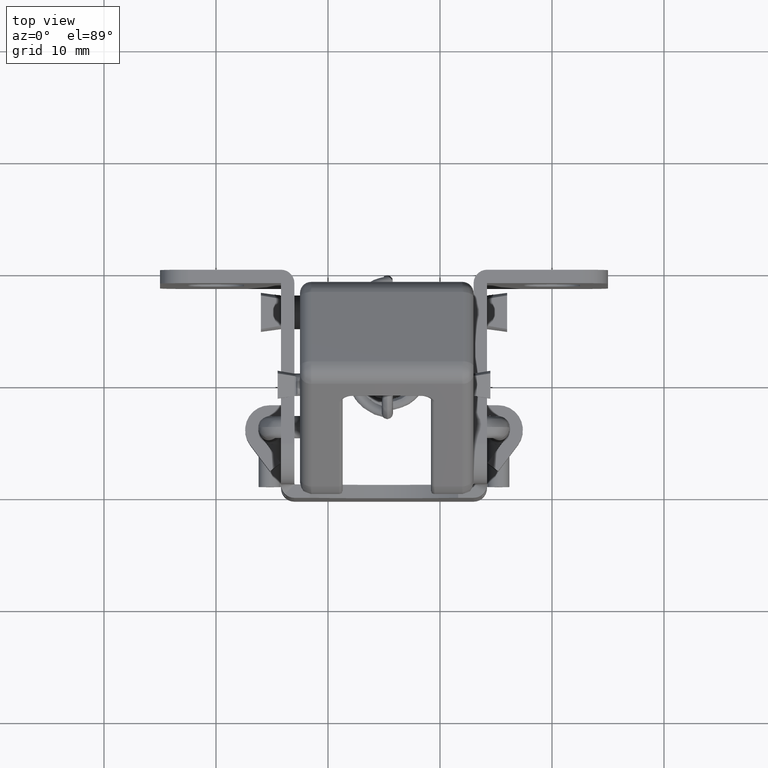
[diagram: clean part render]
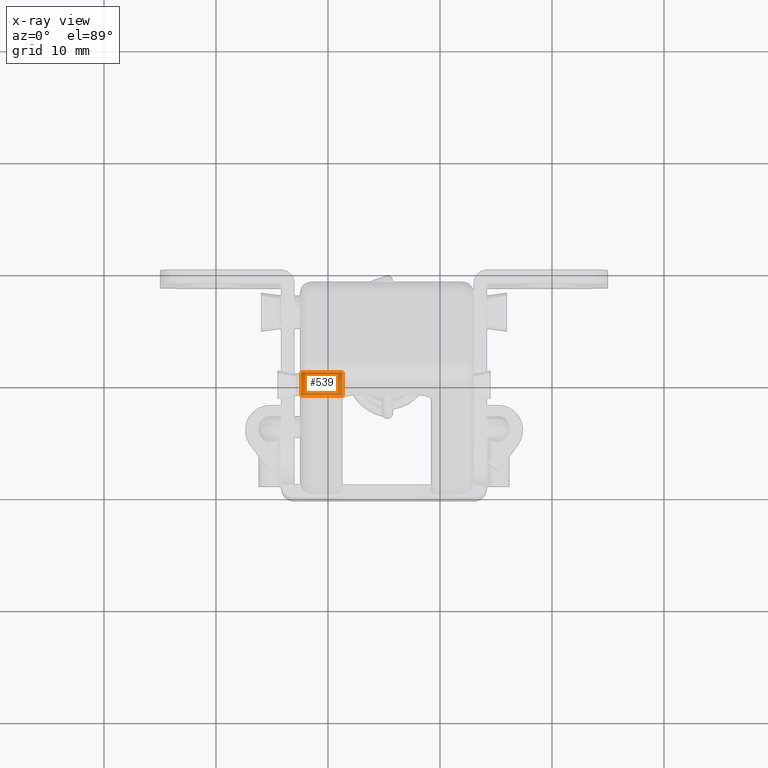
[diagram: x-ray — body ghosted, one internal face saturated and labeled with its STEP entity id]
A machine part, top view, then the same camera in x-ray: the body is ghosted and one INTERNAL B-rep face — a face not visible from any outside direction — is saturated and labeled: STEP entity #539.
In plain terms, the highlighted cylindrical surface (edge-blend (fillet) strip) has radius 1.1 mm, axis along (-1, 0, 0).
Its self-contained STEP definition (entity closure, byte-faithful):
#539=ADVANCED_FACE('',(#3056),#3055,.F.);
#3055=CYLINDRICAL_SURFACE('',#6252,1.10000000000E+00);
#3056=FACE_OUTER_BOUND('',#6253,.T.);
#6249=CARTESIAN_POINT('',(1.20000000000E+01,9.92250000000E+02,5.50000000000E+00));
#6250=DIRECTION('',(-0.00000000000E+00,1.00000000000E+00,0.00000000000E+00));
#6251=DIRECTION('',(0.00000000000E+00,0.00000000000E+00,1.00000000000E+00));
#6252=AXIS2_PLACEMENT_3D('',#6249,#6250,#6251);
#6253=EDGE_LOOP('',(#12127,#12128,#12129,#12130));
#12127=ORIENTED_EDGE('',*,*,#13072,.T.);
#12128=ORIENTED_EDGE('',*,*,#13086,.F.);
#12129=ORIENTED_EDGE('',*,*,#13048,.F.);
#12130=ORIENTED_EDGE('',*,*,#13087,.T.);
#13048=EDGE_CURVE('',#17135,#17136,#17137,.T.);
#13072=EDGE_CURVE('',#17285,#17286,#17287,.T.);
#13086=EDGE_CURVE('',#17136,#17286,#17375,.T.);
#13087=EDGE_CURVE('',#17135,#17285,#17381,.T.);
#17135=VERTEX_POINT('',#21035);
#17136=VERTEX_POINT('',#21036);
#17137=CIRCLE('',#21040,1.10000000000E+00);
#17285=VERTEX_POINT('',#21119);
#17286=VERTEX_POINT('',#21120);
#17287=CIRCLE('',#21124,1.10000000000E+00);
#17375=(BOUNDED_CURVE() B_SPLINE_CURVE(1,(#21171,#21172),.UNSPECIFIED.,.F.,.F.) B_SPLINE_CURVE_WITH_KNOTS((2,2),(8.33333358172E-02,9.16666671238E-01),.UNSPECIFIED.) CURVE() GEOMETRIC_REPRESENTATION_ITEM() RATIONAL_B_SPLINE_CURVE((1.00000000000E+00,1.00000000000E+00)) REPRESENTATION_ITEM('') );
#17381=(BOUNDED_CURVE() B_SPLINE_CURVE(1,(#21173,#21174),.UNSPECIFIED.,.F.,.F.) B_SPLINE_CURVE_WITH_KNOTS((2,2),(8.33333333333E-02,9.16666666667E-01),.UNSPECIFIED.) CURVE() GEOMETRIC_REPRESENTATION_ITEM() RATIONAL_B_SPLINE_CURVE((7.50000000000E-01,7.50000000000E-01)) REPRESENTATION_ITEM('') );
#21035=CARTESIAN_POINT('',(1.20000000000E+01,3.95000000000E+00,4.40000000000E+00));
#21036=CARTESIAN_POINT('',(1.20000000000E+01,3.95000000000E+00,6.60000000000E+00));
#21037=CARTESIAN_POINT('',(1.20000000000E+01,3.95000000000E+00,5.50000000000E+00));
#21038=DIRECTION('',(0.00000000000E+00,1.00000000000E+00,0.00000000000E+00));
#21039=DIRECTION('',(-1.22460635382E-16,0.00000000000E+00,-1.00000000000E+00));
#21040=AXIS2_PLACEMENT_3D('',#21037,#21038,#21039);
#21119=CARTESIAN_POINT('',(1.20000000005E+01,7.65000000000E+00,4.40000000000E+00));
#21120=CARTESIAN_POINT('',(1.20000000000E+01,7.65000000000E+00,6.60000000000E+00));
#21121=CARTESIAN_POINT('',(1.20000000000E+01,7.65000000000E+00,5.50000000000E+00));
#21122=DIRECTION('',(0.00000000000E+00,1.00000000000E+00,-0.00000000000E+00));
#21123=DIRECTION('',(-1.22460635382E-16,0.00000000000E+00,1.00000000000E+00));
#21124=AXIS2_PLACEMENT_3D('',#21121,#21122,#21123);
#21171=CARTESIAN_POINT('',(1.20000000000E+01,3.95000001103E+00,6.60000000000E+00));
#21172=CARTESIAN_POINT('',(1.20000000000E+01,7.65000002030E+00,6.60000000000E+00));
#21173=CARTESIAN_POINT('',(1.20000000000E+01,3.95000000000E+00,4.40000000000E+00));
#21174=CARTESIAN_POINT('',(1.20000000000E+01,7.65000000000E+00,4.40000000000E+00));